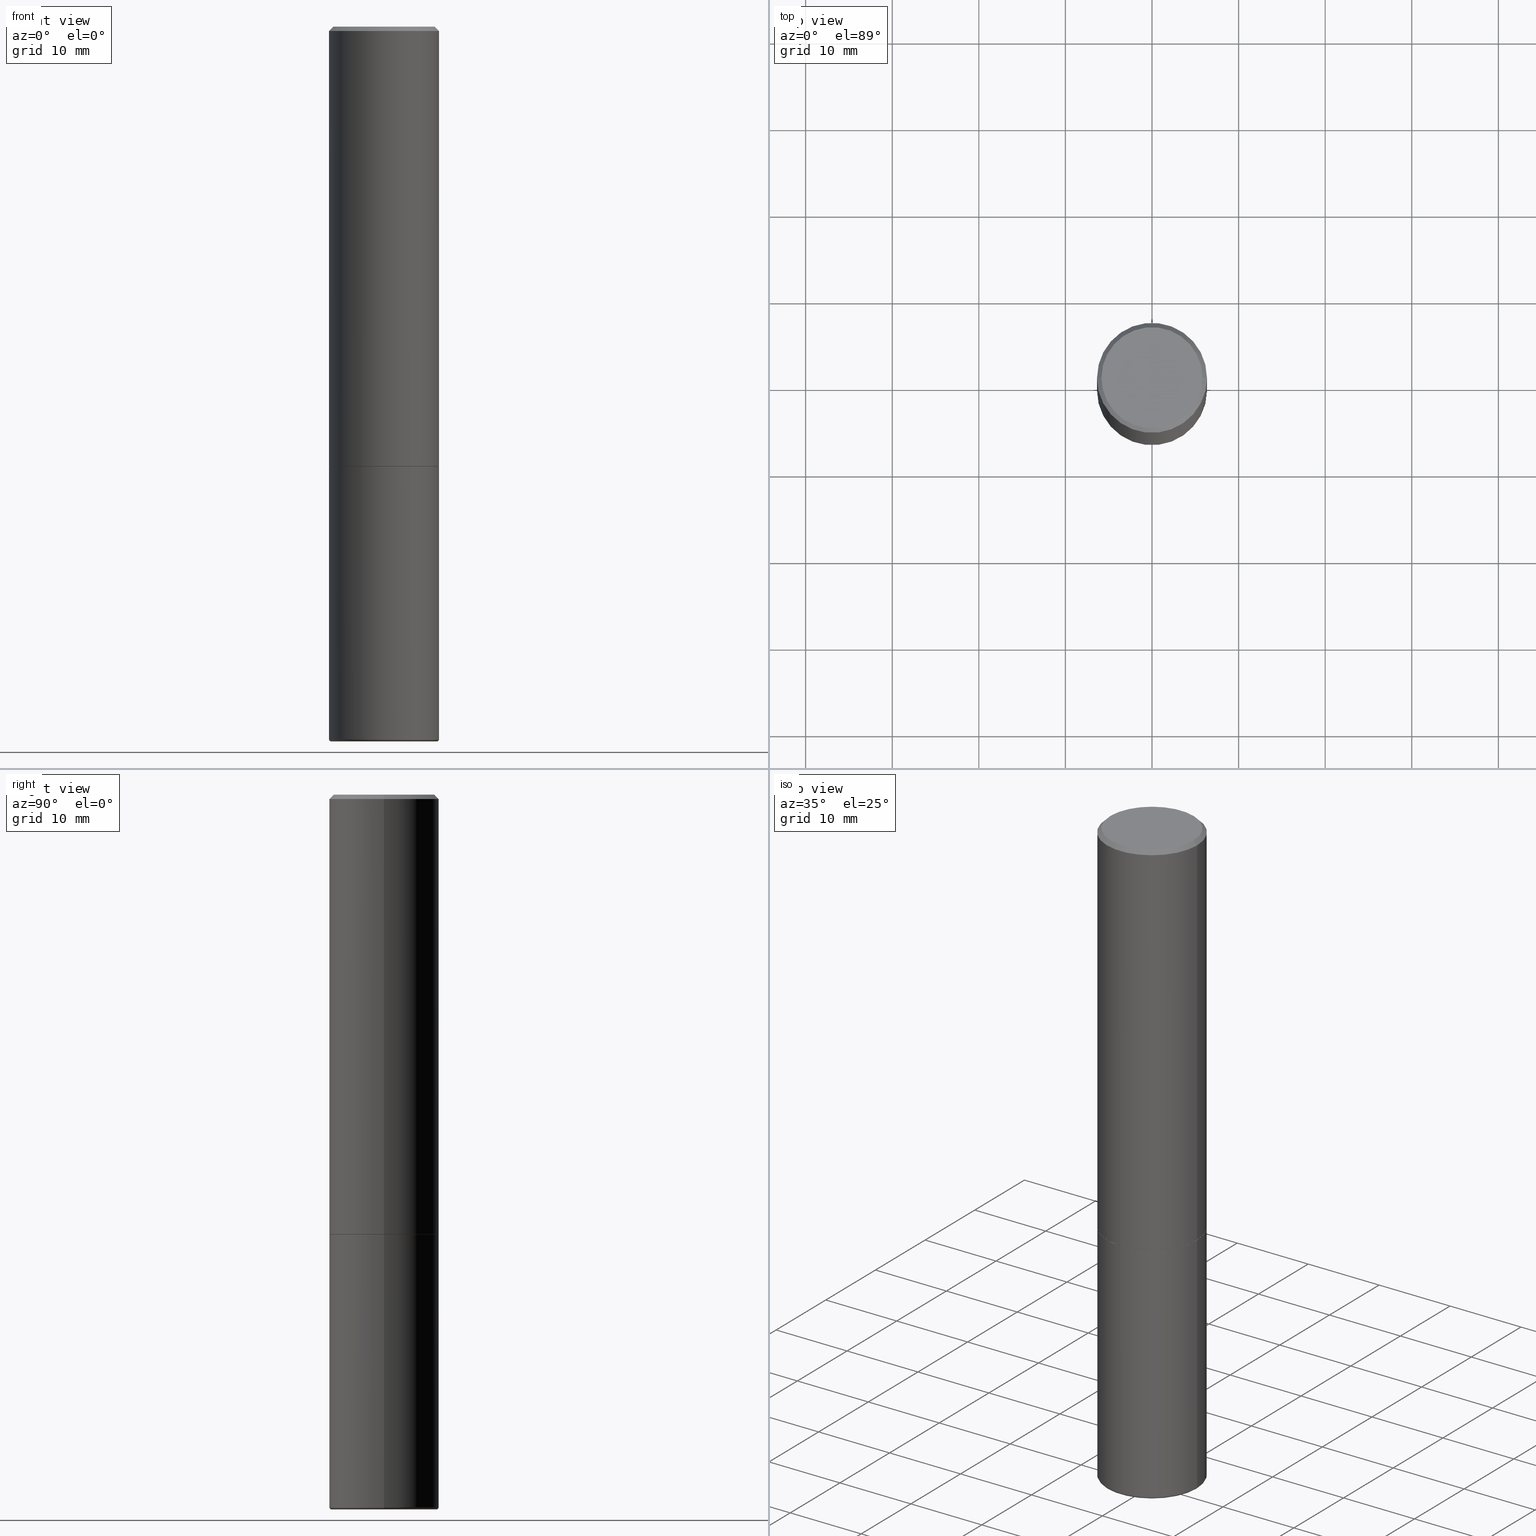
[diagram: canonical four-view strip — front | top / right | iso, engineering-drawing reading convention]
A machine part, canonical four-view strip (front | top / right | iso — engineering-drawing reading convention). The complete STEP part file that produces these views, byte-faithful:
ISO-10303-21;
HEADER;
FILE_DESCRIPTION (( 'STEP AP203' ),
    '1' );
FILE_NAME ('38838.STEP',
    '2024-03-03T16:07:33',
    ( '' ),
    ( '' ),
    'SwSTEP 2.0',
    'SolidWorks 2023',
    '' );
FILE_SCHEMA (( 'CONFIG_CONTROL_DESIGN' ));
ENDSEC;

DATA;
#1 = LINE ( 'NONE', #282, #342 ) ;
#2 = ORIENTED_EDGE ( 'NONE', *, *, #8, .T. ) ;
#3 = CARTESIAN_POINT ( 'NONE',  ( 4.890937612370273754E-29, -6.982962677686291954E-15, -2.000000000000000444 ) ) ;
#4 = EDGE_LOOP ( 'NONE', ( #290, #2 ) ) ;
#5 = DIRECTION ( 'NONE',  ( 1.000000000000000000, -6.982962677686266711E-15, 0.000000000000000000 ) ) ;
#6 = EDGE_LOOP ( 'NONE', ( #159, #178, #191, #143 ) ) ;
#7 = APPLICATION_CONTEXT ( 'configuration controlled 3d designs of mechanical parts and assemblies' ) ;
#8 = EDGE_CURVE ( 'NONE', #212, #257, #44, .T. ) ;
#9 = ORIENTED_EDGE ( 'NONE', *, *, #385, .F. ) ;
#10 = AXIS2_PLACEMENT_3D ( 'NONE', #137, #266, #404 ) ;
#11 = FACE_OUTER_BOUND ( 'NONE', #4, .T. ) ;
#12 = PLANE ( 'NONE',  #242 ) ;
#13 = CYLINDRICAL_SURFACE ( 'NONE', #321, 0.2500000000000001110 ) ;
#14 = CC_DESIGN_PERSON_AND_ORGANIZATION_ASSIGNMENT ( #268, #405, ( #22 ) ) ;
#15 = FACE_OUTER_BOUND ( 'NONE', #61, .T. ) ;
#16 = VECTOR ( 'NONE', #74, 39.37007874015748143 ) ;
#17 = DIRECTION ( 'NONE',  ( 1.000000000000000000, -6.982962677686269077E-15, 4.883557194083114022E-29 ) ) ;
#18 = VERTEX_POINT ( 'NONE', #53 ) ;
#19 = CYLINDRICAL_SURFACE ( 'NONE', #10, 0.2500000000000001110 ) ;
#20 = APPROVAL_STATUS ( 'not_yet_approved' ) ;
#21 = CARTESIAN_POINT ( 'NONE',  ( -0.2489999999999999991, -5.208412811295419307E-15, -2.000000000000000444 ) ) ;
#22 = PRODUCT_DEFINITION_FORMATION_WITH_SPECIFIED_SOURCE ( 'ANY', '', #294, .NOT_KNOWN. ) ;
#23 = CC_DESIGN_APPROVAL ( #348, ( #293 ) ) ;
#24 = ORIENTED_EDGE ( 'NONE', *, *, #139, .T. ) ;
#25 = DIRECTION ( 'NONE',  ( 1.000000000000000000, -6.982962677686266711E-15, 0.000000000000000000 ) ) ;
#26 = DIRECTION ( 'NONE',  ( 2.438088387897960049E-29, -3.491481338843145188E-15, -1.000000000000000000 ) ) ;
#27 = LOCAL_TIME ( 11, 7, 33.00000000000000000, #146 ) ;
#28 = LINE ( 'NONE', #91, #269 ) ;
#29 = VERTEX_POINT ( 'NONE', #180 ) ;
#30 = CIRCLE ( 'NONE', #380, 0.009999999999999790307 ) ;
#31 = DIRECTION ( 'NONE',  ( -2.445468806185136597E-29, 3.491481338843145583E-15, 1.000000000000000000 ) ) ;
#32 = ORIENTED_EDGE ( 'NONE', *, *, #374, .T. ) ;
#33 = EDGE_CURVE ( 'NONE', #93, #118, #351, .T. ) ;
#34 = CARTESIAN_POINT ( 'NONE',  ( 4.888492143564088712E-29, -6.979471196347448158E-15, -1.999000000000000110 ) ) ;
#35 = CARTESIAN_POINT ( 'NONE',  ( 0.2489999999999999991, -8.721720384430172617E-15, -2.000000000000000444 ) ) ;
#36 = VECTOR ( 'NONE', #400, 39.37007874015748143 ) ;
#37 = VECTOR ( 'NONE', #356, 39.37007874015748143 ) ;
#38 = DIRECTION ( 'NONE',  ( 1.000000000000000000, -6.982962677686267499E-15, 4.876176775795936353E-29 ) ) ;
#39 = ORIENTED_EDGE ( 'NONE', *, *, #232, .F. ) ;
#40 = CC_DESIGN_PERSON_AND_ORGANIZATION_ASSIGNMENT ( #51, #48, ( #192 ) ) ;
#41 = DIRECTION ( 'NONE',  ( 2.438088387897960049E-29, -3.491481338843145188E-15, -1.000000000000000000 ) ) ;
#42 = EDGE_CURVE ( 'NONE', #369, #93, #235, .T. ) ;
#43 = LINE ( 'NONE', #67, #301 ) ;
#44 = CIRCLE ( 'NONE', #395, 0.2500000000000000000 ) ;
#45 = DIRECTION ( 'NONE',  ( -2.445468806185136597E-29, 3.491481338843145583E-15, 1.000000000000000000 ) ) ;
#46 = ORIENTED_EDGE ( 'NONE', *, *, #232, .T. ) ;
#47 = FACE_OUTER_BOUND ( 'NONE', #386, .T. ) ;
#48 = PERSON_AND_ORGANIZATION_ROLE ( 'creator' ) ;
#49 = EDGE_LOOP ( 'NONE', ( #413, #417, #46, #355 ) ) ;
#50 = PERSON_AND_ORGANIZATION ( #65, #273 ) ;
#51 = PERSON_AND_ORGANIZATION ( #65, #273 ) ;
#52 = CIRCLE ( 'NONE', #343, 0.2500000000000002220 ) ;
#53 = CARTESIAN_POINT ( 'NONE',  ( 0.2399999999999999911, -1.302322539388492623E-14, -3.249999999999999556 ) ) ;
#54 =( NAMED_UNIT ( * ) PLANE_ANGLE_UNIT ( ) SI_UNIT ( $, .RADIAN. ) );
#55 = APPROVAL ( #147, 'UNSPECIFIED' ) ;
#56 = DIRECTION ( 'NONE',  ( 2.438088387897960049E-29, -3.491481338843145188E-15, -1.000000000000000000 ) ) ;
#57 = APPROVAL_ROLE ( '' ) ;
#58 = AXIS2_PLACEMENT_3D ( 'NONE', #237, #151, #72 ) ;
#59 = DIRECTION ( 'NONE',  ( 1.000000000000000000, -6.982962677686266711E-15, 0.000000000000000000 ) ) ;
#60 = CARTESIAN_POINT ( 'NONE',  ( 7.923318932039842394E-29, -1.131239953785179120E-14, -3.239999999999999769 ) ) ;
#61 = EDGE_LOOP ( 'NONE', ( #326, #121, #188, #327 ) ) ;
#62 = CARTESIAN_POINT ( 'NONE',  ( 0.000000000000000000, 0.000000000000000000, 0.000000000000000000 ) ) ;
#63 = CIRCLE ( 'NONE', #142, 0.2500000000000000000 ) ;
#64 = DIRECTION ( 'NONE',  ( 1.000000000000000000, -6.982962677686269077E-15, 4.883557194083114022E-29 ) ) ;
#65 = PERSON ( 'UNSPECIFIED', 'UNSPECIFIED', 'UNSPECIFIED', ('UNSPECIFIED'), ('UNSPECIFIED'), ('UNSPECIFIED') ) ;
#66 = CARTESIAN_POINT ( 'NONE',  ( 4.890937612370287172E-31, -6.982962677686310098E-17, -0.02000000000000005593 ) ) ;
#67 = CARTESIAN_POINT ( 'NONE',  ( -0.2500000000000000000, 1.776356839400250465E-15, -1.229733772563726445E-29 ) ) ;
#68 = AXIS2_PLACEMENT_3D ( 'NONE', #60, #276, #64 ) ;
#69 = AXIS2_PLACEMENT_3D ( 'NONE', #394, #101, #76 ) ;
#70 = CC_DESIGN_SECURITY_CLASSIFICATION ( #293, ( #22 ) ) ;
#71 = CARTESIAN_POINT ( 'NONE',  ( 0.2299999999999999267, -1.681434332853598617E-15, 4.695363739111602110E-17 ) ) ;
#72 = DIRECTION ( 'NONE',  ( 1.000000000000000000, -6.982962677686268288E-15, 0.000000000000000000 ) ) ;
#73 = CARTESIAN_POINT ( 'NONE',  ( 7.923318932039842394E-29, -1.131239953785179120E-14, -3.239999999999999769 ) ) ;
#74 = DIRECTION ( 'NONE',  ( -2.445468806185136877E-29, 3.491481338843145188E-15, 1.000000000000000000 ) ) ;
#75 = EDGE_LOOP ( 'NONE', ( #127, #163, #79, #9 ) ) ;
#76 = DIRECTION ( 'NONE',  ( 1.000000000000000000, -6.982962677686266711E-15, 4.876176775795935793E-29 ) ) ;
#77 = AXIS2_PLACEMENT_3D ( 'NONE', #220, #284, #165 ) ;
#78 = MANIFOLD_SOLID_BREP ( 'Body-Move/Copy2[2]', #246 ) ;
#79 = ORIENTED_EDGE ( 'NONE', *, *, #157, .F. ) ;
#80 = PERSON_AND_ORGANIZATION ( #65, #273 ) ;
#81 = CARTESIAN_POINT ( 'NONE',  ( 4.890937612370273754E-29, -6.982962677686291954E-15, -2.000000000000000444 ) ) ;
#82 = APPROVAL_STATUS ( 'not_yet_approved' ) ;
#83 = CONICAL_SURFACE ( 'NONE', #371, 0.2500000000000000000, 0.7853981633974472798 ) ;
#84 = EDGE_CURVE ( 'NONE', #29, #18, #128, .T. ) ;
#85 = ADVANCED_FACE ( 'NONE', ( #111 ), #296, .F. ) ;
#86 = CARTESIAN_POINT ( 'NONE',  ( 4.890937612370273754E-29, -6.982962677686291954E-15, -2.000000000000000444 ) ) ;
#87 = ORIENTED_EDGE ( 'NONE', *, *, #265, .F. ) ;
#88 = VECTOR ( 'NONE', #169, 39.37007874015748143 ) ;
#89 = DIRECTION ( 'NONE',  ( -2.445468806185136597E-29, 3.491481338843145583E-15, 1.000000000000000000 ) ) ;
#90 = EDGE_LOOP ( 'NONE', ( #204, #283, #219, #39 ) ) ;
#91 = CARTESIAN_POINT ( 'NONE',  ( -0.2500000000000000000, 1.675911042644703577E-15, -0.02000000000000005593 ) ) ;
#92 = VERTEX_POINT ( 'NONE', #21 ) ;
#93 = VERTEX_POINT ( 'NONE', #270 ) ;
#94 = APPROVAL_PERSON_ORGANIZATION ( #341, #55, #57 ) ;
#95 = DIRECTION ( 'NONE',  ( -2.445468806185136597E-29, 3.491481338843145583E-15, 1.000000000000000000 ) ) ;
#96 = ORIENTED_EDGE ( 'NONE', *, *, #189, .F. ) ;
#97 = ADVANCED_FACE ( 'NONE', ( #47 ), #19, .T. ) ;
#98 = DIRECTION ( 'NONE',  ( -2.445468806185136597E-29, 3.491481338843145583E-15, 1.000000000000000000 ) ) ;
#99 = LINE ( 'NONE', #170, #16 ) ;
#100 = AXIS2_PLACEMENT_3D ( 'NONE', #275, #416, #381 ) ;
#101 = DIRECTION ( 'NONE',  ( -2.445468806185136597E-29, 3.491481338843145583E-15, 1.000000000000000000 ) ) ;
#102 = ORIENTED_EDGE ( 'NONE', *, *, #323, .F. ) ;
#103 = DIRECTION ( 'NONE',  ( 7.105427357601001859E-15, 1.000000000000000000, -3.491481338843145583E-15 ) ) ;
#104 = DIRECTION ( 'NONE',  ( 2.445468806185136597E-29, -3.491481338843145583E-15, -1.000000000000000000 ) ) ;
#105 = CIRCLE ( 'NONE', #358, 0.2489999999999999991 ) ;
#106 = CARTESIAN_POINT ( 'NONE',  ( 4.890937612370273754E-29, -6.982962677686291954E-15, -2.000000000000000444 ) ) ;
#107 = DATE_AND_TIME ( #375, #407 ) ;
#108 = AXIS2_PLACEMENT_3D ( 'NONE', #295, #256, #230 ) ;
#109 = CARTESIAN_POINT ( 'NONE',  ( -0.2500000000000000000, 1.675911042644703577E-15, -0.02000000000000005593 ) ) ;
#110 = DATE_TIME_ROLE ( 'classification_date' ) ;
#111 = FACE_OUTER_BOUND ( 'NONE', #372, .T. ) ;
#112 =( NAMED_UNIT ( * ) SI_UNIT ( $, .STERADIAN. ) SOLID_ANGLE_UNIT ( ) );
#113 = PERSON_AND_ORGANIZATION_ROLE ( 'classification_officer' ) ;
#114 = EDGE_CURVE ( 'NONE', #322, #92, #105, .T. ) ;
#115 = ORIENTED_EDGE ( 'NONE', *, *, #368, .T. ) ;
#116 = CARTESIAN_POINT ( 'NONE',  ( 4.890937612370287172E-31, -6.982962677686310098E-17, -0.02000000000000005593 ) ) ;
#117 = AXIS2_PLACEMENT_3D ( 'NONE', #116, #89, #158 ) ;
#118 = VERTEX_POINT ( 'NONE', #109 ) ;
#119 = SHAPE_DEFINITION_REPRESENTATION ( #298, #332 ) ;
#120 = FACE_OUTER_BOUND ( 'NONE', #49, .T. ) ;
#121 = ORIENTED_EDGE ( 'NONE', *, *, #189, .T. ) ;
#122 = CC_DESIGN_PERSON_AND_ORGANIZATION_ASSIGNMENT ( #138, #415, ( #22 ) ) ;
#123 = DIRECTION ( 'NONE',  ( -2.445468806185136597E-29, 3.491481338843145583E-15, 1.000000000000000000 ) ) ;
#124 = ORIENTED_EDGE ( 'NONE', *, *, #316, .F. ) ;
#125 = DIRECTION ( 'NONE',  ( -2.445468806185136877E-29, 3.491481338843145188E-15, 1.000000000000000000 ) ) ;
#126 = EDGE_CURVE ( 'NONE', #252, #357, #233, .T. ) ;
#127 = ORIENTED_EDGE ( 'NONE', *, *, #310, .T. ) ;
#128 = CIRCLE ( 'NONE', #215, 0.2399999999999999911 ) ;
#129 = DIRECTION ( 'NONE',  ( 1.000000000000000000, -6.982962677686270655E-15, 0.000000000000000000 ) ) ;
#130 = ADVANCED_FACE ( 'NONE', ( #376 ), #312, .T. ) ;
#131 = UNCERTAINTY_MEASURE_WITH_UNIT (LENGTH_MEASURE( 1.000000000000000082E-05 ), #373, 'distance_accuracy_value', 'NONE');
#132 = CARTESIAN_POINT ( 'NONE',  ( 4.890937612370273754E-29, -6.982962677686291954E-15, -2.000000000000000444 ) ) ;
#133 = ADVANCED_FACE ( 'NONE', ( #377 ), #166, .T. ) ;
#134 = CARTESIAN_POINT ( 'NONE',  ( 0.2489999999999999991, -8.721720384430172617E-15, -2.000000000000000444 ) ) ;
#135 = DIRECTION ( 'NONE',  ( -1.000000000000000000, 6.982962677686266711E-15, 0.000000000000000000 ) ) ;
#136 = CARTESIAN_POINT ( 'NONE',  ( 4.890937612370287172E-31, -6.982962677686310098E-17, -0.02000000000000005593 ) ) ;
#137 = CARTESIAN_POINT ( 'NONE',  ( 0.000000000000000000, 0.000000000000000000, 0.000000000000000000 ) ) ;
#138 = PERSON_AND_ORGANIZATION ( #65, #273 ) ;
#139 = EDGE_CURVE ( 'NONE', #92, #357, #1, .T. ) ;
#140 = APPLICATION_CONTEXT ( 'configuration controlled 3d designs of mechanical parts and assemblies' ) ;
#141 = TOROIDAL_SURFACE ( 'NONE', #68, 0.2399999999999999911, 0.009999999999999807654 ) ;
#142 = AXIS2_PLACEMENT_3D ( 'NONE', #3, #253, #59 ) ;
#143 = ORIENTED_EDGE ( 'NONE', *, *, #335, .F. ) ;
#144 =( GEOMETRIC_REPRESENTATION_CONTEXT ( 3 ) GLOBAL_UNCERTAINTY_ASSIGNED_CONTEXT ( ( #131 ) ) GLOBAL_UNIT_ASSIGNED_CONTEXT ( ( #373, #54, #112 ) ) REPRESENTATION_CONTEXT ( 'NONE', 'WORKASPACE' ) );
#145 = DIRECTION ( 'NONE',  ( 1.000000000000000000, -6.982962677686266711E-15, 0.000000000000000000 ) ) ;
#146 = COORDINATED_UNIVERSAL_TIME_OFFSET ( 5, 0, .BEHIND. ) ;
#147 = APPROVAL_STATUS ( 'not_yet_approved' ) ;
#148 = MECHANICAL_CONTEXT ( 'NONE', #140, 'mechanical' ) ;
#149 = LOCAL_TIME ( 11, 7, 33.00000000000000000, #367 ) ;
#150 = LINE ( 'NONE', #153, #320 ) ;
#151 = DIRECTION ( 'NONE',  ( -2.445468806185136597E-29, 3.491481338843145583E-15, 1.000000000000000000 ) ) ;
#152 = CYLINDRICAL_SURFACE ( 'NONE', #379, 0.2500000000000000000 ) ;
#153 = CARTESIAN_POINT ( 'NONE',  ( 0.2500000000000001110, -1.745740669421567664E-15, 1.219044193948984649E-29 ) ) ;
#154 = CONICAL_SURFACE ( 'NONE', #365, 0.2500000000000000000, 0.7853981633974472798 ) ;
#155 = EDGE_LOOP ( 'NONE', ( #201, #245, #227, #382 ) ) ;
#156 = EDGE_CURVE ( 'NONE', #252, #93, #150, .T. ) ;
#157 = EDGE_CURVE ( 'NONE', #257, #212, #63, .T. ) ;
#158 = DIRECTION ( 'NONE',  ( 1.000000000000000000, -6.982962677686266711E-15, 0.000000000000000000 ) ) ;
#159 = ORIENTED_EDGE ( 'NONE', *, *, #418, .F. ) ;
#160 = ADVANCED_FACE ( 'NONE', ( #387 ), #152, .T. ) ;
#161 = APPROVAL_DATE_TIME ( #307, #348 ) ;
#162 = FACE_OUTER_BOUND ( 'NONE', #90, .T. ) ;
#163 = ORIENTED_EDGE ( 'NONE', *, *, #392, .T. ) ;
#164 = DESIGN_CONTEXT ( 'detailed design', #7, 'design' ) ;
#165 = DIRECTION ( 'NONE',  ( 1.000000000000000000, -6.982962677686267499E-15, 4.875813741439101456E-29 ) ) ;
#166 = CONICAL_SURFACE ( 'NONE', #222, 0.2489999999999999991, 0.7853981633975336552 ) ;
#167 = CIRCLE ( 'NONE', #223, 0.2299999999999999267 ) ;
#168 = CARTESIAN_POINT ( 'NONE',  ( -0.2500000000000002220, -1.748293572161901516E-15, -1.999000000000000110 ) ) ;
#169 = DIRECTION ( 'NONE',  ( 0.7071067811866078578, -2.468850131082888544E-15, 0.7071067811864871766 ) ) ;
#170 = CARTESIAN_POINT ( 'NONE',  ( -0.2500000000000001110, 1.776356839400251254E-15, -1.229733772563727146E-29 ) ) ;
#171 = CIRCLE ( 'NONE', #203, 0.2500000000000000000 ) ;
#172 = CARTESIAN_POINT ( 'NONE',  ( 7.923318932039842394E-29, -1.131239953785179120E-14, -3.239999999999999769 ) ) ;
#173 = ORIENTED_EDGE ( 'NONE', *, *, #259, .T. ) ;
#174 = CALENDAR_DATE ( 2024, 3, 3 ) ;
#175 = DIRECTION ( 'NONE',  ( -2.445468806185136597E-29, 3.491481338843145583E-15, 1.000000000000000000 ) ) ;
#176 = PERSON_AND_ORGANIZATION ( #65, #273 ) ;
#177 = AXIS2_PLACEMENT_3D ( 'NONE', #238, #328, #272 ) ;
#178 = ORIENTED_EDGE ( 'NONE', *, *, #84, .T. ) ;
#179 = CALENDAR_DATE ( 2024, 3, 3 ) ;
#180 = CARTESIAN_POINT ( 'NONE',  ( -0.2399999999999999911, -9.589027241933761599E-15, -3.249999999999999556 ) ) ;
#181 = COORDINATED_UNIVERSAL_TIME_OFFSET ( 5, 0, .BEHIND. ) ;
#182 = DATE_AND_TIME ( #179, #27 ) ;
#183 = CC_DESIGN_DATE_AND_TIME_ASSIGNMENT ( #331, #244, ( #192 ) ) ;
#184 = CARTESIAN_POINT ( 'NONE',  ( -1.148236555768741665E-45, 1.639377487418492057E-31, 4.695363739110452099E-17 ) ) ;
#185 = CARTESIAN_POINT ( 'NONE',  ( 0.2499999999999998890, -1.305814020727335945E-14, -3.239999999999999769 ) ) ;
#186 = EDGE_LOOP ( 'NONE', ( #350, #24, #229, #347 ) ) ;
#187 = ADVANCED_FACE ( 'NONE', ( #389 ), #141, .T. ) ;
#188 = ORIENTED_EDGE ( 'NONE', *, *, #156, .T. ) ;
#189 = EDGE_CURVE ( 'NONE', #357, #252, #52, .T. ) ;
#190 = CARTESIAN_POINT ( 'NONE',  ( 0.2500000000000002220, -8.725211865769017202E-15, -1.999000000000000110 ) ) ;
#191 = ORIENTED_EDGE ( 'NONE', *, *, #323, .T. ) ;
#192 = PRODUCT_DEFINITION ( 'UNKNOWN', '', #22, #164 ) ;
#193 = CARTESIAN_POINT ( 'NONE',  ( 0.000000000000000000, 0.000000000000000000, 0.000000000000000000 ) ) ;
#194 = CIRCLE ( 'NONE', #100, 0.2399999999999999911 ) ;
#195 = CC_DESIGN_APPROVAL ( #55, ( #192 ) ) ;
#196 = DIRECTION ( 'NONE',  ( 1.000000000000000000, -6.982962677686265922E-15, 4.876176775795935793E-29 ) ) ;
#197 = CARTESIAN_POINT ( 'NONE',  ( 0.2500000000000000000, -1.745740669421566678E-15, 1.219044193948983948E-29 ) ) ;
#198 = AXIS2_PLACEMENT_3D ( 'NONE', #243, #56, #363 ) ;
#199 = APPROVAL_PERSON_ORGANIZATION ( #50, #281, #205 ) ;
#200 = COORDINATED_UNIVERSAL_TIME_OFFSET ( 5, 0, .BEHIND. ) ;
#201 = ORIENTED_EDGE ( 'NONE', *, *, #392, .F. ) ;
#202 = ADVANCED_FACE ( 'NONE', ( #211 ), #406, .T. ) ;
#203 = AXIS2_PLACEMENT_3D ( 'NONE', #318, #98, #129 ) ;
#204 = ORIENTED_EDGE ( 'NONE', *, *, #259, .F. ) ;
#205 = APPROVAL_ROLE ( '' ) ;
#206 = MANIFOLD_SOLID_BREP ( 'Body-Move/Copy2[1]', #308 ) ;
#207 = DIRECTION ( 'NONE',  ( -2.445468806185136597E-29, 3.491481338843145583E-15, 1.000000000000000000 ) ) ;
#208 = APPLICATION_PROTOCOL_DEFINITION ( 'international standard', 'config_control_design', 1994, #7 ) ;
#209 = TOROIDAL_SURFACE ( 'NONE', #277, 0.2399999999999999911, 0.009999999999999807654 ) ;
#210 = DIRECTION ( 'NONE',  ( 1.000000000000000000, -6.982962677686268288E-15, 0.000000000000000000 ) ) ;
#211 = FACE_OUTER_BOUND ( 'NONE', #186, .T. ) ;
#212 = VERTEX_POINT ( 'NONE', #354 ) ;
#213 = VERTEX_POINT ( 'NONE', #185 ) ;
#214 = DIRECTION ( 'NONE',  ( -2.445468806185136597E-29, 3.491481338843145583E-15, 1.000000000000000000 ) ) ;
#215 = AXIS2_PLACEMENT_3D ( 'NONE', #271, #207, #299 ) ;
#216 = AXIS2_PLACEMENT_3D ( 'NONE', #396, #258, #359 ) ;
#217 = ORIENTED_EDGE ( 'NONE', *, *, #139, .F. ) ;
#218 = CARTESIAN_POINT ( 'NONE',  ( 4.890937612370273754E-29, -6.982962677686291954E-15, -2.000000000000000444 ) ) ;
#219 = ORIENTED_EDGE ( 'NONE', *, *, #33, .T. ) ;
#220 = CARTESIAN_POINT ( 'NONE',  ( -1.148236555768741665E-45, 1.639377487418492057E-31, 4.695363739110452099E-17 ) ) ;
#221 = DIRECTION ( 'NONE',  ( -2.438088387897960049E-29, 3.491481338843145188E-15, 1.000000000000000000 ) ) ;
#222 = AXIS2_PLACEMENT_3D ( 'NONE', #86, #95, #349 ) ;
#223 = AXIS2_PLACEMENT_3D ( 'NONE', #184, #31, #315 ) ;
#224 = PRODUCT_RELATED_PRODUCT_CATEGORY ( 'detail', '', ( #294 ) ) ;
#225 = ADVANCED_FACE ( 'NONE', ( #162 ), #154, .T. ) ;
#226 = CARTESIAN_POINT ( 'NONE',  ( 4.890937612370273754E-29, -6.982962677686291954E-15, -2.000000000000000444 ) ) ;
#227 = ORIENTED_EDGE ( 'NONE', *, *, #385, .T. ) ;
#228 = DIRECTION ( 'NONE',  ( -1.000000000000000000, 7.105427357601074434E-15, 0.000000000000000000 ) ) ;
#229 = ORIENTED_EDGE ( 'NONE', *, *, #126, .F. ) ;
#230 = DIRECTION ( 'NONE',  ( 1.000000000000000000, -6.982962677686266711E-15, 0.000000000000000000 ) ) ;
#231 = EDGE_LOOP ( 'NONE', ( #87, #345 ) ) ;
#232 = EDGE_CURVE ( 'NONE', #263, #118, #28, .T. ) ;
#233 = CIRCLE ( 'NONE', #58, 0.2500000000000002220 ) ;
#234 = CIRCLE ( 'NONE', #216, 0.009999999999999790307 ) ;
#235 = LINE ( 'NONE', #366, #36 ) ;
#236 = APPLICATION_PROTOCOL_DEFINITION ( 'international standard', 'config_control_design', 1994, #140 ) ;
#237 = CARTESIAN_POINT ( 'NONE',  ( 4.888492143564088712E-29, -6.979471196347448158E-15, -1.999000000000000110 ) ) ;
#238 = CARTESIAN_POINT ( 'NONE',  ( 0.000000000000000000, 0.000000000000000000, 0.000000000000000000 ) ) ;
#239 = ORIENTED_EDGE ( 'NONE', *, *, #384, .T. ) ;
#240 = APPROVAL_ROLE ( '' ) ;
#241 = AXIS2_PLACEMENT_3D ( 'NONE', #402, #26, #346 ) ;
#242 = AXIS2_PLACEMENT_3D ( 'NONE', #132, #221, #196 ) ;
#243 = CARTESIAN_POINT ( 'NONE',  ( 1.606081415867840870E-15, 0.2299999999999999267, -7.795638892383710465E-16 ) ) ;
#244 = DATE_TIME_ROLE ( 'creation_date' ) ;
#245 = ORIENTED_EDGE ( 'NONE', *, *, #335, .T. ) ;
#246 = CLOSED_SHELL ( 'NONE', ( #202, #97, #225, #285, #403, #133, #411, #85 ) ) ;
#247 = DIRECTION ( 'NONE',  ( 2.445468806185136597E-29, -3.491481338843145583E-15, -1.000000000000000000 ) ) ;
#248 = ORIENTED_EDGE ( 'NONE', *, *, #33, .F. ) ;
#249 = DIRECTION ( 'NONE',  ( -0.7071067811866078578, 7.493145998870571886E-15, 0.7071067811864871766 ) ) ;
#250 = ORIENTED_EDGE ( 'NONE', *, *, #114, .F. ) ;
#251 = CARTESIAN_POINT ( 'NONE',  ( -0.2299999999999999267, 1.640996229256272519E-15, 4.695363739109317495E-17 ) ) ;
#252 = VERTEX_POINT ( 'NONE', #190 ) ;
#253 = DIRECTION ( 'NONE',  ( -2.445468806185136597E-29, 3.491481338843145583E-15, 1.000000000000000000 ) ) ;
#254 = CC_DESIGN_APPROVAL ( #281, ( #22 ) ) ;
#255 = EDGE_LOOP ( 'NONE', ( #390, #393, #340, #102 ) ) ;
#256 = DIRECTION ( 'NONE',  ( -2.445468806185136597E-29, 3.491481338843145583E-15, 1.000000000000000000 ) ) ;
#257 = VERTEX_POINT ( 'NONE', #353 ) ;
#258 = DIRECTION ( 'NONE',  ( -6.982962677686266711E-15, -1.000000000000000000, 3.491481338843145583E-15 ) ) ;
#259 = EDGE_CURVE ( 'NONE', #369, #263, #167, .T. ) ;
#260 = DIRECTION ( 'NONE',  ( -2.445468806185136597E-29, 3.491481338843145583E-15, 1.000000000000000000 ) ) ;
#261 = AXIS2_PLACEMENT_3D ( 'NONE', #408, #175, #25 ) ;
#262 = LOCAL_TIME ( 11, 7, 33.00000000000000000, #300 ) ;
#263 = VERTEX_POINT ( 'NONE', #251 ) ;
#264 = FACE_OUTER_BOUND ( 'NONE', #75, .T. ) ;
#265 = EDGE_CURVE ( 'NONE', #18, #29, #194, .T. ) ;
#266 = DIRECTION ( 'NONE',  ( -2.445468806185136597E-29, 3.491481338843145583E-15, 1.000000000000000000 ) ) ;
#267 = EDGE_CURVE ( 'NONE', #118, #93, #360, .T. ) ;
#268 = PERSON_AND_ORGANIZATION ( #65, #273 ) ;
#269 = VECTOR ( 'NONE', #344, 39.37007874015748143 ) ;
#270 = CARTESIAN_POINT ( 'NONE',  ( 0.2500000000000000000, -1.784954126219746189E-15, -0.02000000000000005593 ) ) ;
#271 = CARTESIAN_POINT ( 'NONE',  ( 7.947773620101692818E-29, -1.134731435124022127E-14, -3.249999999999999556 ) ) ;
#272 = DIRECTION ( 'NONE',  ( 1.000000000000000000, 0.000000000000000000, 0.000000000000000000 ) ) ;
#273 = ORGANIZATION ( 'UNSPECIFIED', 'UNSPECIFIED', '' ) ;
#274 = PERSON_AND_ORGANIZATION ( #65, #273 ) ;
#275 = CARTESIAN_POINT ( 'NONE',  ( 7.947773620101692818E-29, -1.134731435124022127E-14, -3.249999999999999556 ) ) ;
#276 = DIRECTION ( 'NONE',  ( -2.445468806185136597E-29, 3.491481338843145583E-15, 1.000000000000000000 ) ) ;
#277 = AXIS2_PLACEMENT_3D ( 'NONE', #73, #45, #17 ) ;
#278 = CARTESIAN_POINT ( 'NONE',  ( -0.2499999999999998890, -9.536042698451540734E-15, -3.239999999999999769 ) ) ;
#279 = ORIENTED_EDGE ( 'NONE', *, *, #126, .T. ) ;
#280 = VERTEX_POINT ( 'NONE', #278 ) ;
#281 = APPROVAL ( #20, 'UNSPECIFIED' ) ;
#282 = CARTESIAN_POINT ( 'NONE',  ( -0.2489999999999999991, -5.213711265643642498E-15, -2.000000000000000444 ) ) ;
#283 = ORIENTED_EDGE ( 'NONE', *, *, #42, .T. ) ;
#284 = DIRECTION ( 'NONE',  ( -2.445468806185136597E-29, 3.491481338843145583E-15, 1.000000000000000000 ) ) ;
#285 = ADVANCED_FACE ( 'NONE', ( #120 ), #83, .T. ) ;
#286 = CC_DESIGN_DATE_AND_TIME_ASSIGNMENT ( #107, #110, ( #293 ) ) ;
#287 = FACE_OUTER_BOUND ( 'NONE', #378, .T. ) ;
#288 = ORIENTED_EDGE ( 'NONE', *, *, #316, .T. ) ;
#289 =( LENGTH_UNIT ( ) NAMED_UNIT ( * ) SI_UNIT ( $, .METRE. ) );
#290 = ORIENTED_EDGE ( 'NONE', *, *, #157, .T. ) ;
#291 = LINE ( 'NONE', #35, #88 ) ;
#292 = LOCAL_TIME ( 11, 7, 33.00000000000000000, #200 ) ;
#293 = SECURITY_CLASSIFICATION ( '', '', #412 ) ;
#294 = PRODUCT ( '38838', '38838', '', ( #148 ) ) ;
#295 = CARTESIAN_POINT ( 'NONE',  ( 4.890937612370273754E-29, -6.982962677686291954E-15, -2.000000000000000444 ) ) ;
#296 = PLANE ( 'NONE',  #198 ) ;
#297 = APPROVAL_DATE_TIME ( #334, #55 ) ;
#298 = PRODUCT_DEFINITION_SHAPE ( 'NONE', 'NONE',  #192 ) ;
#299 = DIRECTION ( 'NONE',  ( 1.000000000000000000, -6.982962677686268288E-15, 0.000000000000000000 ) ) ;
#300 = COORDINATED_UNIVERSAL_TIME_OFFSET ( 5, 0, .BEHIND. ) ;
#301 = VECTOR ( 'NONE', #361, 39.37007874015748143 ) ;
#302 = EDGE_LOOP ( 'NONE', ( #217, #288, #115, #96 ) ) ;
#303 = APPROVAL_DATE_TIME ( #182, #281 ) ;
#304 = CC_DESIGN_PERSON_AND_ORGANIZATION_ASSIGNMENT ( #274, #113, ( #293 ) ) ;
#305 = ADVANCED_FACE ( 'NONE', ( #362 ), #209, .T. ) ;
#306 = ADVANCED_FACE ( 'NONE', ( #11 ), #401, .F. ) ;
#307 = DATE_AND_TIME ( #339, #262 ) ;
#308 = CLOSED_SHELL ( 'NONE', ( #329, #305, #306, #160, #187, #130 ) ) ;
#309 = CIRCLE ( 'NONE', #77, 0.2299999999999999267 ) ;
#310 = EDGE_CURVE ( 'NONE', #213, #280, #314, .T. ) ;
#311 = DIRECTION ( 'NONE',  ( 1.000000000000000000, -6.982962677686266711E-15, 4.876176775795935793E-29 ) ) ;
#312 = PLANE ( 'NONE',  #241 ) ;
#313 = DIRECTION ( 'NONE',  ( -1.000000000000000000, 6.982962677686266711E-15, 0.000000000000000000 ) ) ;
#314 = CIRCLE ( 'NONE', #388, 0.2500000000000000000 ) ;
#315 = DIRECTION ( 'NONE',  ( 1.000000000000000000, -6.982962677686267499E-15, 4.875813741439101456E-29 ) ) ;
#316 = EDGE_CURVE ( 'NONE', #92, #322, #352, .T. ) ;
#317 = DIRECTION ( 'NONE',  ( -2.445468806185136597E-29, 3.491481338843145583E-15, 1.000000000000000000 ) ) ;
#318 = CARTESIAN_POINT ( 'NONE',  ( 7.923318932039842394E-29, -1.131239953785179120E-14, -3.239999999999999769 ) ) ;
#319 = DIRECTION ( 'NONE',  ( -2.445468806185136597E-29, 3.491481338843145583E-15, 1.000000000000000000 ) ) ;
#320 = VECTOR ( 'NONE', #125, 39.37007874015748143 ) ;
#321 = AXIS2_PLACEMENT_3D ( 'NONE', #193, #319, #38 ) ;
#322 = VERTEX_POINT ( 'NONE', #134 ) ;
#323 = EDGE_CURVE ( 'NONE', #18, #213, #234, .T. ) ;
#324 = CARTESIAN_POINT ( 'NONE',  ( -0.2399999999999999911, -9.607096972027550816E-15, -3.239999999999999769 ) ) ;
#325 = DIRECTION ( 'NONE',  ( -1.000000000000000000, 6.982962677686265922E-15, -4.876176775795935793E-29 ) ) ;
#326 = ORIENTED_EDGE ( 'NONE', *, *, #374, .F. ) ;
#327 = ORIENTED_EDGE ( 'NONE', *, *, #267, .F. ) ;
#328 = DIRECTION ( 'NONE',  ( 0.000000000000000000, 0.000000000000000000, 1.000000000000000000 ) ) ;
#329 = ADVANCED_FACE ( 'NONE', ( #264 ), #364, .T. ) ;
#330 = DIRECTION ( 'NONE',  ( -2.445468806185136597E-29, 3.491481338843145583E-15, 1.000000000000000000 ) ) ;
#331 = DATE_AND_TIME ( #174, #149 ) ;
#332 = ADVANCED_BREP_SHAPE_REPRESENTATION ( '38838', ( #206, #78, #177 ), #144 ) ;
#333 = DIRECTION ( 'NONE',  ( 1.000000000000000000, -6.982962677686266711E-15, 0.000000000000000000 ) ) ;
#334 = DATE_AND_TIME ( #409, #292 ) ;
#335 = EDGE_CURVE ( 'NONE', #280, #213, #171, .T. ) ;
#336 = AXIS2_PLACEMENT_3D ( 'NONE', #226, #41, #325 ) ;
#337 = APPROVAL_PERSON_ORGANIZATION ( #176, #348, #240 ) ;
#338 = DIRECTION ( 'NONE',  ( -2.445468806185136597E-29, 3.491481338843145583E-15, 1.000000000000000000 ) ) ;
#339 = CALENDAR_DATE ( 2024, 3, 3 ) ;
#340 = ORIENTED_EDGE ( 'NONE', *, *, #310, .F. ) ;
#341 = PERSON_AND_ORGANIZATION ( #65, #273 ) ;
#342 = VECTOR ( 'NONE', #249, 39.37007874015748143 ) ;
#343 = AXIS2_PLACEMENT_3D ( 'NONE', #34, #123, #210 ) ;
#344 = DIRECTION ( 'NONE',  ( -0.7071067811865467956, 2.468850131082249172E-15, -0.7071067811865482389 ) ) ;
#345 = ORIENTED_EDGE ( 'NONE', *, *, #84, .F. ) ;
#346 = DIRECTION ( 'NONE',  ( -1.000000000000000000, 6.982962677686265922E-15, -4.876176775795935793E-29 ) ) ;
#347 = ORIENTED_EDGE ( 'NONE', *, *, #368, .F. ) ;
#348 = APPROVAL ( #82, 'UNSPECIFIED' ) ;
#349 = DIRECTION ( 'NONE',  ( 1.000000000000000000, -6.982962677686266711E-15, 0.000000000000000000 ) ) ;
#350 = ORIENTED_EDGE ( 'NONE', *, *, #114, .T. ) ;
#351 = CIRCLE ( 'NONE', #261, 0.2500000000000000000 ) ;
#352 = CIRCLE ( 'NONE', #108, 0.2489999999999999991 ) ;
#353 = CARTESIAN_POINT ( 'NONE',  ( 0.2500000000000000000, -8.728703347107858632E-15, -2.000000000000000444 ) ) ;
#354 = CARTESIAN_POINT ( 'NONE',  ( -0.2500000000000000000, -7.371324268368791112E-15, -2.000000000000000444 ) ) ;
#355 = ORIENTED_EDGE ( 'NONE', *, *, #267, .T. ) ;
#356 = DIRECTION ( 'NONE',  ( -2.445468806185136877E-29, 3.491481338843145188E-15, 1.000000000000000000 ) ) ;
#357 = VERTEX_POINT ( 'NONE', #168 ) ;
#358 = AXIS2_PLACEMENT_3D ( 'NONE', #106, #330, #333 ) ;
#359 = DIRECTION ( 'NONE',  ( 1.000000000000000000, -6.982962677686284854E-15, 0.000000000000000000 ) ) ;
#360 = CIRCLE ( 'NONE', #117, 0.2500000000000000000 ) ;
#361 = DIRECTION ( 'NONE',  ( -2.445468806185136877E-29, 3.491481338843145188E-15, 1.000000000000000000 ) ) ;
#362 = FACE_OUTER_BOUND ( 'NONE', #255, .T. ) ;
#363 = DIRECTION ( 'NONE',  ( -1.000000000000000000, 6.982962677686265922E-15, -4.876176775795935793E-29 ) ) ;
#364 = CYLINDRICAL_SURFACE ( 'NONE', #69, 0.2500000000000000000 ) ;
#365 = AXIS2_PLACEMENT_3D ( 'NONE', #66, #247, #313 ) ;
#366 = CARTESIAN_POINT ( 'NONE',  ( 0.2500000000000000000, -1.784954126219746189E-15, -0.02000000000000005593 ) ) ;
#367 = COORDINATED_UNIVERSAL_TIME_OFFSET ( 5, 0, .BEHIND. ) ;
#368 = EDGE_CURVE ( 'NONE', #322, #252, #291, .T. ) ;
#369 = VERTEX_POINT ( 'NONE', #71 ) ;
#370 = PERSON_AND_ORGANIZATION_ROLE ( 'design_owner' ) ;
#371 = AXIS2_PLACEMENT_3D ( 'NONE', #136, #104, #135 ) ;
#372 = EDGE_LOOP ( 'NONE', ( #239, #173 ) ) ;
#373 =( CONVERSION_BASED_UNIT ( 'INCH', #414 ) LENGTH_UNIT ( ) NAMED_UNIT ( #410 ) );
#374 = EDGE_CURVE ( 'NONE', #357, #118, #99, .T. ) ;
#375 = CALENDAR_DATE ( 2024, 3, 3 ) ;
#376 = FACE_OUTER_BOUND ( 'NONE', #231, .T. ) ;
#377 = FACE_OUTER_BOUND ( 'NONE', #302, .T. ) ;
#378 = EDGE_LOOP ( 'NONE', ( #250, #124 ) ) ;
#379 = AXIS2_PLACEMENT_3D ( 'NONE', #62, #317, #311 ) ;
#380 = AXIS2_PLACEMENT_3D ( 'NONE', #324, #103, #228 ) ;
#381 = DIRECTION ( 'NONE',  ( 1.000000000000000000, -6.982962677686268288E-15, 0.000000000000000000 ) ) ;
#382 = ORIENTED_EDGE ( 'NONE', *, *, #8, .F. ) ;
#383 = CC_DESIGN_PERSON_AND_ORGANIZATION_ASSIGNMENT ( #80, #370, ( #294 ) ) ;
#384 = EDGE_CURVE ( 'NONE', #263, #369, #309, .T. ) ;
#385 = EDGE_CURVE ( 'NONE', #213, #257, #391, .T. ) ;
#386 = EDGE_LOOP ( 'NONE', ( #279, #32, #248, #399 ) ) ;
#387 = FACE_OUTER_BOUND ( 'NONE', #155, .T. ) ;
#388 = AXIS2_PLACEMENT_3D ( 'NONE', #172, #260, #398 ) ;
#389 = FACE_OUTER_BOUND ( 'NONE', #6, .T. ) ;
#390 = ORIENTED_EDGE ( 'NONE', *, *, #265, .T. ) ;
#391 = LINE ( 'NONE', #197, #37 ) ;
#392 = EDGE_CURVE ( 'NONE', #280, #212, #43, .T. ) ;
#393 = ORIENTED_EDGE ( 'NONE', *, *, #418, .T. ) ;
#394 = CARTESIAN_POINT ( 'NONE',  ( 0.000000000000000000, 0.000000000000000000, 0.000000000000000000 ) ) ;
#395 = AXIS2_PLACEMENT_3D ( 'NONE', #81, #338, #145 ) ;
#396 = CARTESIAN_POINT ( 'NONE',  ( 0.2399999999999999911, -1.298831058049649616E-14, -3.239999999999999769 ) ) ;
#397 = AXIS2_PLACEMENT_3D ( 'NONE', #218, #214, #5 ) ;
#398 = DIRECTION ( 'NONE',  ( 1.000000000000000000, -6.982962677686270655E-15, 0.000000000000000000 ) ) ;
#399 = ORIENTED_EDGE ( 'NONE', *, *, #156, .F. ) ;
#400 = DIRECTION ( 'NONE',  ( 0.7071067811865467956, -7.319954787623254468E-15, -0.7071067811865482389 ) ) ;
#401 = PLANE ( 'NONE',  #336 ) ;
#402 = CARTESIAN_POINT ( 'NONE',  ( 1.311429661075389283E-28, -3.948559368399508239E-15, -3.249999999999999556 ) ) ;
#403 = ADVANCED_FACE ( 'NONE', ( #15 ), #13, .T. ) ;
#404 = DIRECTION ( 'NONE',  ( 1.000000000000000000, -6.982962677686267499E-15, 4.876176775795936353E-29 ) ) ;
#405 = PERSON_AND_ORGANIZATION_ROLE ( 'design_supplier' ) ;
#406 = CONICAL_SURFACE ( 'NONE', #397, 0.2489999999999999991, 0.7853981633975336552 ) ;
#407 = LOCAL_TIME ( 11, 7, 33.00000000000000000, #181 ) ;
#408 = CARTESIAN_POINT ( 'NONE',  ( 4.890937612370287172E-31, -6.982962677686310098E-17, -0.02000000000000005593 ) ) ;
#409 = CALENDAR_DATE ( 2024, 3, 3 ) ;
#410 = DIMENSIONAL_EXPONENTS ( 1.000000000000000000, 0.000000000000000000, 0.000000000000000000, 0.000000000000000000, 0.000000000000000000, 0.000000000000000000, 0.000000000000000000 ) ;
#411 = ADVANCED_FACE ( 'NONE', ( #287 ), #12, .F. ) ;
#412 = SECURITY_CLASSIFICATION_LEVEL ( 'unclassified' ) ;
#413 = ORIENTED_EDGE ( 'NONE', *, *, #42, .F. ) ;
#414 = LENGTH_MEASURE_WITH_UNIT ( LENGTH_MEASURE( 0.02539999999999999897 ), #289 );
#415 = PERSON_AND_ORGANIZATION_ROLE ( 'creator' ) ;
#416 = DIRECTION ( 'NONE',  ( -2.445468806185136597E-29, 3.491481338843145583E-15, 1.000000000000000000 ) ) ;
#417 = ORIENTED_EDGE ( 'NONE', *, *, #384, .F. ) ;
#418 = EDGE_CURVE ( 'NONE', #29, #280, #30, .T. ) ;
ENDSEC;
END-ISO-10303-21;
